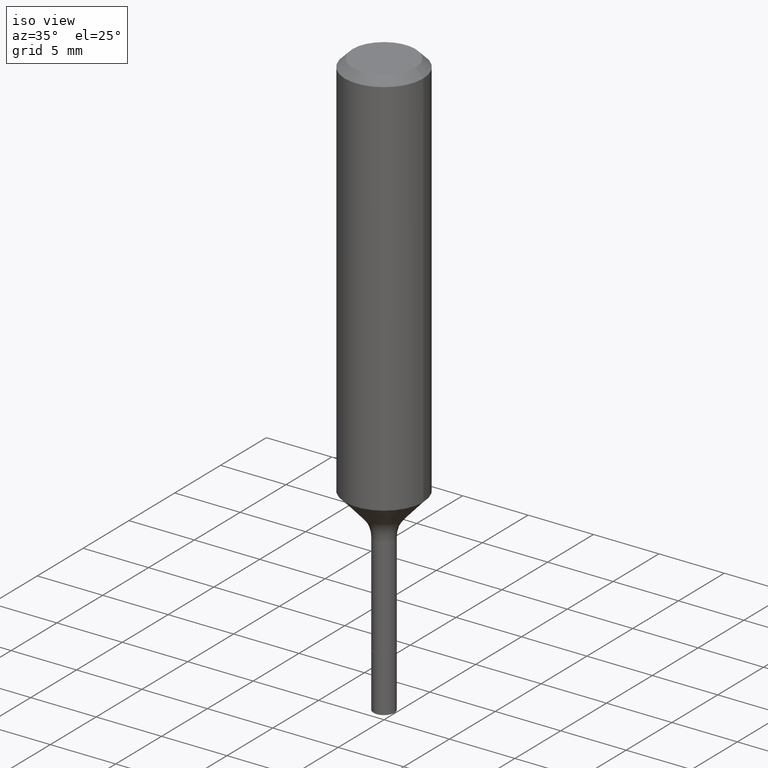
[diagram: clean part render]
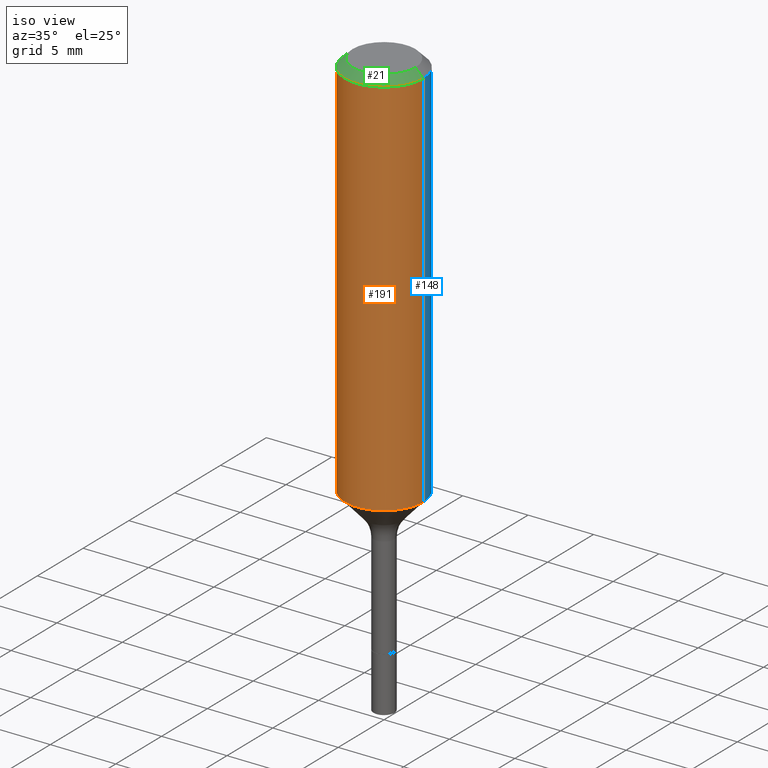
[diagram: same view with three faces highlighted in distinct colors, each labeled with its STEP entity id]
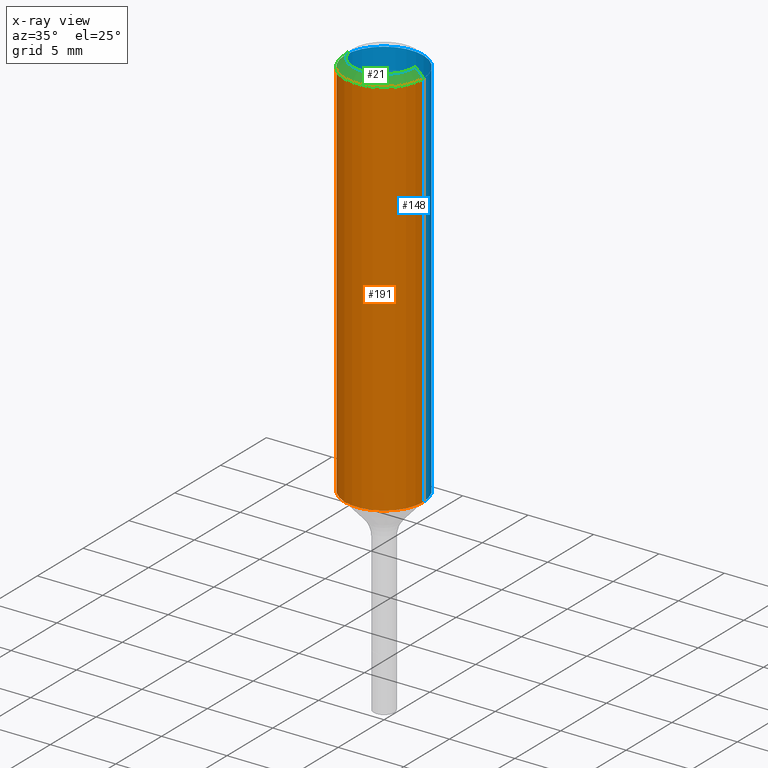
[diagram: x-ray of the same camera — body ghosted, the three highlighted faces saturated]
A machine part, iso view with three faces highlighted in distinct colors.
The next image is the same camera in x-ray (body ghosted, the three faces saturated) — at least one of them is partly hidden behind the body in this view.
Their STEP definitions:

[orange] entity #191 — the highlighted cylindrical surface (partial cylindrical patch) has radius 2.9997 mm, axis along (-0, 0, 1).
#1 = EDGE_CURVE ( 'NONE', #371, #332, #56, .T. ) ;
#7 = CARTESIAN_POINT ( 'NONE',  ( 0.1181000000000000660, -8.246878922347485584E-16, 5.758764772215003944E-30 ) ) ;
#12 = DIRECTION ( 'NONE',  ( -2.445468806185136877E-29, 3.491481338843145188E-15, 1.000000000000000000 ) ) ;
#29 = DIRECTION ( 'NONE',  ( -2.445468806185136877E-29, 3.491481338843145188E-15, 1.000000000000000000 ) ) ;
#56 = LINE ( 'NONE', #7, #200 ) ;
#72 = AXIS2_PLACEMENT_3D ( 'NONE', #400, #195, #233 ) ;
#76 = CYLINDRICAL_SURFACE ( 'NONE', #187, 0.1181000000000000660 ) ;
#80 = CARTESIAN_POINT ( 'NONE',  ( 0.000000000000000000, 0.000000000000000000, 0.000000000000000000 ) ) ;
#86 = CIRCLE ( 'NONE', #483, 0.1180999999999999966 ) ;
#90 = CARTESIAN_POINT ( 'NONE',  ( -0.1181000000000001354, -3.264456986786058347E-15, -1.175320031662667297 ) ) ;
#109 = DIRECTION ( 'NONE',  ( -2.445468806185136597E-29, 3.491481338843145583E-15, 1.000000000000000000 ) ) ;
#122 = ORIENTED_EDGE ( 'NONE', *, *, #412, .T. ) ;
#123 = CARTESIAN_POINT ( 'NONE',  ( 0.1181000000000001354, -4.928295849953486385E-15, -1.175320031662667297 ) ) ;
#187 = AXIS2_PLACEMENT_3D ( 'NONE', #80, #232, #249 ) ;
#191 = ADVANCED_FACE ( 'NONE', ( #333 ), #76, .T. ) ;
#193 = VECTOR ( 'NONE', #29, 39.37007874015748143 ) ;
#195 = DIRECTION ( 'NONE',  ( -2.445468806185136597E-29, 3.491481338843145583E-15, 1.000000000000000000 ) ) ;
#200 = VECTOR ( 'NONE', #12, 39.37007874015748143 ) ;
#232 = DIRECTION ( 'NONE',  ( -2.445468806185136597E-29, 3.491481338843145583E-15, 1.000000000000000000 ) ) ;
#233 = DIRECTION ( 'NONE',  ( 1.000000000000000000, -6.982962677686269077E-15, 0.000000000000000000 ) ) ;
#249 = DIRECTION ( 'NONE',  ( 1.000000000000000000, -6.982962677686266711E-15, 4.876176775795936353E-29 ) ) ;
#298 = CIRCLE ( 'NONE', #72, 0.1181000000000001354 ) ;
#311 = CARTESIAN_POINT ( 'NONE',  ( 5.776197320209326656E-31, -8.246878922347558061E-17, -0.02362000000000013741 ) ) ;
#312 = LINE ( 'NONE', #467, #193 ) ;
#332 = VERTEX_POINT ( 'NONE', #487 ) ;
#333 = FACE_OUTER_BOUND ( 'NONE', #443, .T. ) ;
#350 = CARTESIAN_POINT ( 'NONE',  ( -0.1180999999999999966, -1.253887402538427015E-15, -0.02362000000000013741 ) ) ;
#361 = VERTEX_POINT ( 'NONE', #90 ) ;
#371 = VERTEX_POINT ( 'NONE', #123 ) ;
#400 = CARTESIAN_POINT ( 'NONE',  ( 2.874208474715579591E-29, -4.103607957718737333E-15, -1.175320031662667297 ) ) ;
#401 = ORIENTED_EDGE ( 'NONE', *, *, #461, .F. ) ;
#409 = ORIENTED_EDGE ( 'NONE', *, *, #1, .T. ) ;
#412 = EDGE_CURVE ( 'NONE', #361, #371, #298, .T. ) ;
#427 = DIRECTION ( 'NONE',  ( 1.000000000000000000, -6.982962677686266711E-15, 0.000000000000000000 ) ) ;
#432 = EDGE_CURVE ( 'NONE', #361, #450, #312, .T. ) ;
#443 = EDGE_LOOP ( 'NONE', ( #446, #122, #409, #401 ) ) ;
#446 = ORIENTED_EDGE ( 'NONE', *, *, #432, .F. ) ;
#450 = VERTEX_POINT ( 'NONE', #350 ) ;
#461 = EDGE_CURVE ( 'NONE', #450, #332, #86, .T. ) ;
#467 = CARTESIAN_POINT ( 'NONE',  ( -0.1181000000000000660, 8.391509709326787887E-16, -5.809262341591047287E-30 ) ) ;
#483 = AXIS2_PLACEMENT_3D ( 'NONE', #311, #109, #427 ) ;
#487 = CARTESIAN_POINT ( 'NONE',  ( 0.1180999999999999966, -9.071566814582237199E-16, -0.02362000000000013741 ) ) ;

[blue] entity #148 — the highlighted cylindrical surface (partial cylindrical patch) has radius 2.9997 mm, axis along (-0, 0, 1).
#1 = EDGE_CURVE ( 'NONE', #371, #332, #56, .T. ) ;
#7 = CARTESIAN_POINT ( 'NONE',  ( 0.1181000000000000660, -8.246878922347485584E-16, 5.758764772215003944E-30 ) ) ;
#9 = AXIS2_PLACEMENT_3D ( 'NONE', #17, #375, #100 ) ;
#12 = DIRECTION ( 'NONE',  ( -2.445468806185136877E-29, 3.491481338843145188E-15, 1.000000000000000000 ) ) ;
#17 = CARTESIAN_POINT ( 'NONE',  ( 2.874208474715579591E-29, -4.103607957718737333E-15, -1.175320031662667297 ) ) ;
#29 = DIRECTION ( 'NONE',  ( -2.445468806185136877E-29, 3.491481338843145188E-15, 1.000000000000000000 ) ) ;
#56 = LINE ( 'NONE', #7, #200 ) ;
#90 = CARTESIAN_POINT ( 'NONE',  ( -0.1181000000000001354, -3.264456986786058347E-15, -1.175320031662667297 ) ) ;
#100 = DIRECTION ( 'NONE',  ( 1.000000000000000000, -6.982962677686269077E-15, 0.000000000000000000 ) ) ;
#123 = CARTESIAN_POINT ( 'NONE',  ( 0.1181000000000001354, -4.928295849953486385E-15, -1.175320031662667297 ) ) ;
#148 = ADVANCED_FACE ( 'NONE', ( #433 ), #165, .T. ) ;
#165 = CYLINDRICAL_SURFACE ( 'NONE', #386, 0.1181000000000000660 ) ;
#193 = VECTOR ( 'NONE', #29, 39.37007874015748143 ) ;
#200 = VECTOR ( 'NONE', #12, 39.37007874015748143 ) ;
#204 = CIRCLE ( 'NONE', #9, 0.1181000000000001354 ) ;
#212 = EDGE_CURVE ( 'NONE', #332, #450, #297, .T. ) ;
#223 = ORIENTED_EDGE ( 'NONE', *, *, #506, .T. ) ;
#235 = ORIENTED_EDGE ( 'NONE', *, *, #212, .F. ) ;
#246 = ORIENTED_EDGE ( 'NONE', *, *, #1, .F. ) ;
#273 = EDGE_LOOP ( 'NONE', ( #223, #431, #235, #246 ) ) ;
#291 = CARTESIAN_POINT ( 'NONE',  ( 0.000000000000000000, 0.000000000000000000, 0.000000000000000000 ) ) ;
#297 = CIRCLE ( 'NONE', #502, 0.1180999999999999966 ) ;
#312 = LINE ( 'NONE', #467, #193 ) ;
#326 = DIRECTION ( 'NONE',  ( 1.000000000000000000, -6.982962677686266711E-15, 0.000000000000000000 ) ) ;
#332 = VERTEX_POINT ( 'NONE', #487 ) ;
#350 = CARTESIAN_POINT ( 'NONE',  ( -0.1180999999999999966, -1.253887402538427015E-15, -0.02362000000000013741 ) ) ;
#357 = DIRECTION ( 'NONE',  ( 1.000000000000000000, -6.982962677686266711E-15, 4.876176775795936353E-29 ) ) ;
#361 = VERTEX_POINT ( 'NONE', #90 ) ;
#371 = VERTEX_POINT ( 'NONE', #123 ) ;
#375 = DIRECTION ( 'NONE',  ( -2.445468806185136597E-29, 3.491481338843145583E-15, 1.000000000000000000 ) ) ;
#386 = AXIS2_PLACEMENT_3D ( 'NONE', #291, #404, #357 ) ;
#404 = DIRECTION ( 'NONE',  ( -2.445468806185136597E-29, 3.491481338843145583E-15, 1.000000000000000000 ) ) ;
#431 = ORIENTED_EDGE ( 'NONE', *, *, #432, .T. ) ;
#432 = EDGE_CURVE ( 'NONE', #361, #450, #312, .T. ) ;
#433 = FACE_OUTER_BOUND ( 'NONE', #273, .T. ) ;
#448 = CARTESIAN_POINT ( 'NONE',  ( 5.776197320209326656E-31, -8.246878922347558061E-17, -0.02362000000000013741 ) ) ;
#450 = VERTEX_POINT ( 'NONE', #350 ) ;
#467 = CARTESIAN_POINT ( 'NONE',  ( -0.1181000000000000660, 8.391509709326787887E-16, -5.809262341591047287E-30 ) ) ;
#486 = DIRECTION ( 'NONE',  ( -2.445468806185136597E-29, 3.491481338843145583E-15, 1.000000000000000000 ) ) ;
#487 = CARTESIAN_POINT ( 'NONE',  ( 0.1180999999999999966, -9.071566814582237199E-16, -0.02362000000000013741 ) ) ;
#502 = AXIS2_PLACEMENT_3D ( 'NONE', #448, #486, #326 ) ;
#506 = EDGE_CURVE ( 'NONE', #371, #361, #204, .T. ) ;

[green] entity #21 — the highlighted conical surface has half-angle 45 deg.
#21 = ADVANCED_FACE ( 'NONE', ( #491 ), #239, .T. ) ;
#36 = DIRECTION ( 'NONE',  ( 2.445468806185136597E-29, -3.491481338843145583E-15, -1.000000000000000000 ) ) ;
#52 = AXIS2_PLACEMENT_3D ( 'NONE', #314, #36, #382 ) ;
#55 = LINE ( 'NONE', #459, #114 ) ;
#81 = EDGE_CURVE ( 'NONE', #159, #450, #55, .T. ) ;
#86 = CIRCLE ( 'NONE', #483, 0.1180999999999999966 ) ;
#109 = DIRECTION ( 'NONE',  ( -2.445468806185136597E-29, 3.491481338843145583E-15, 1.000000000000000000 ) ) ;
#114 = VECTOR ( 'NONE', #146, 39.37007874015748143 ) ;
#117 = CARTESIAN_POINT ( 'NONE',  ( 7.545787641473140628E-46, -1.077338491108201769E-31, -3.085620075131671975E-17 ) ) ;
#126 = CIRCLE ( 'NONE', #439, 0.09447999999999998066 ) ;
#134 = DIRECTION ( 'NONE',  ( 1.000000000000000000, -6.982962677686267499E-15, 4.875432709231658792E-29 ) ) ;
#140 = ORIENTED_EDGE ( 'NONE', *, *, #325, .F. ) ;
#146 = DIRECTION ( 'NONE',  ( -0.7071067811865461294, 2.468850131082242072E-15, -0.7071067811865489050 ) ) ;
#159 = VERTEX_POINT ( 'NONE', #363 ) ;
#196 = ORIENTED_EDGE ( 'NONE', *, *, #428, .F. ) ;
#239 = CONICAL_SURFACE ( 'NONE', #52, 0.1180999999999999966, 0.7853981633974463916 ) ;
#245 = CARTESIAN_POINT ( 'NONE',  ( 0.09447999999999998066, -7.704367267948738690E-16, -3.085620075131172158E-17 ) ) ;
#274 = DIRECTION ( 'NONE',  ( -2.445468806185136597E-29, 3.491481338843145583E-15, 1.000000000000000000 ) ) ;
#311 = CARTESIAN_POINT ( 'NONE',  ( 5.776197320209326656E-31, -8.246878922347558061E-17, -0.02362000000000013741 ) ) ;
#314 = CARTESIAN_POINT ( 'NONE',  ( 5.776197320209326656E-31, -8.246878922347558061E-17, -0.02362000000000013741 ) ) ;
#322 = LINE ( 'NONE', #515, #360 ) ;
#325 = EDGE_CURVE ( 'NONE', #159, #394, #126, .T. ) ;
#332 = VERTEX_POINT ( 'NONE', #487 ) ;
#350 = CARTESIAN_POINT ( 'NONE',  ( -0.1180999999999999966, -1.253887402538427015E-15, -0.02362000000000013741 ) ) ;
#360 = VECTOR ( 'NONE', #511, 39.37007874015748143 ) ;
#363 = CARTESIAN_POINT ( 'NONE',  ( -0.09447999999999998066, 7.009847083995354710E-16, -3.085620075132147757E-17 ) ) ;
#382 = DIRECTION ( 'NONE',  ( -1.000000000000000000, 6.982962677686266711E-15, 0.000000000000000000 ) ) ;
#394 = VERTEX_POINT ( 'NONE', #245 ) ;
#397 = ORIENTED_EDGE ( 'NONE', *, *, #461, .T. ) ;
#427 = DIRECTION ( 'NONE',  ( 1.000000000000000000, -6.982962677686266711E-15, 0.000000000000000000 ) ) ;
#428 = EDGE_CURVE ( 'NONE', #394, #332, #322, .T. ) ;
#435 = ORIENTED_EDGE ( 'NONE', *, *, #81, .T. ) ;
#439 = AXIS2_PLACEMENT_3D ( 'NONE', #117, #274, #134 ) ;
#450 = VERTEX_POINT ( 'NONE', #350 ) ;
#457 = EDGE_LOOP ( 'NONE', ( #196, #140, #435, #397 ) ) ;
#459 = CARTESIAN_POINT ( 'NONE',  ( -0.1180999999999999966, 7.422191030112725094E-16, -0.02362000000000013741 ) ) ;
#461 = EDGE_CURVE ( 'NONE', #450, #332, #86, .T. ) ;
#483 = AXIS2_PLACEMENT_3D ( 'NONE', #311, #109, #427 ) ;
#487 = CARTESIAN_POINT ( 'NONE',  ( 0.1180999999999999966, -9.071566814582237199E-16, -0.02362000000000013741 ) ) ;
#491 = FACE_OUTER_BOUND ( 'NONE', #457, .T. ) ;
#511 = DIRECTION ( 'NONE',  ( 0.7071067811865461294, -7.319954787623251312E-15, -0.7071067811865489050 ) ) ;
#515 = CARTESIAN_POINT ( 'NONE',  ( 0.1180999999999999966, -8.926936027602933910E-16, -0.02362000000000013741 ) ) ;